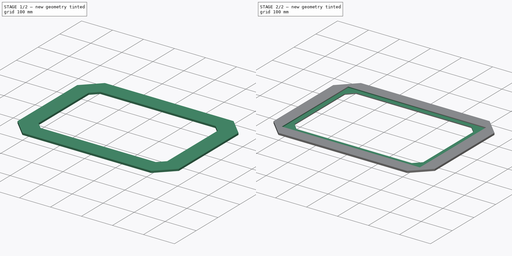
[diagram: build sequence overview — one tinted view per stage of 2, left to right]
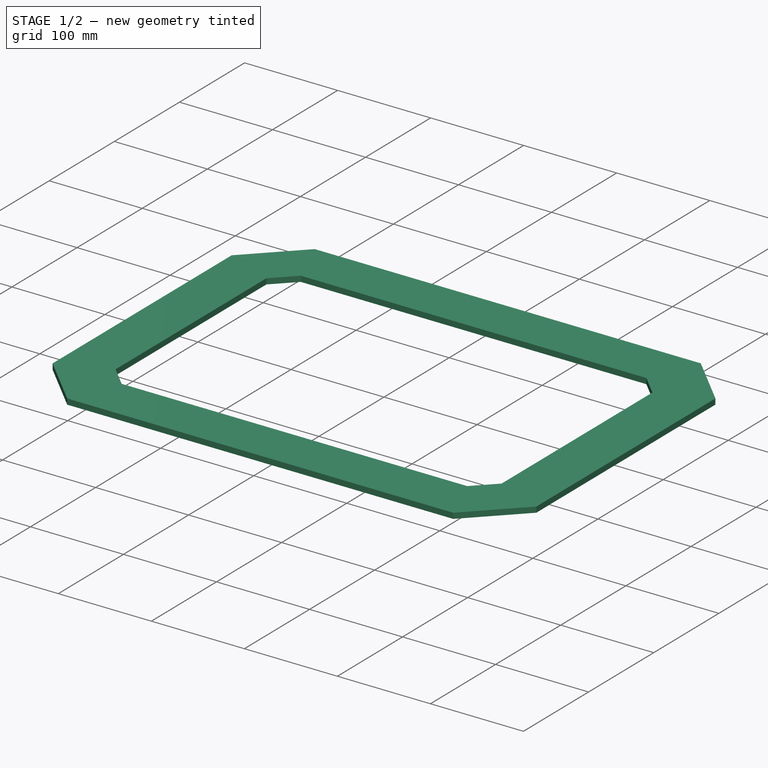
[diagram: stage 1 of 2 — iso view after this stage's code; geometry added in this stage tinted green]
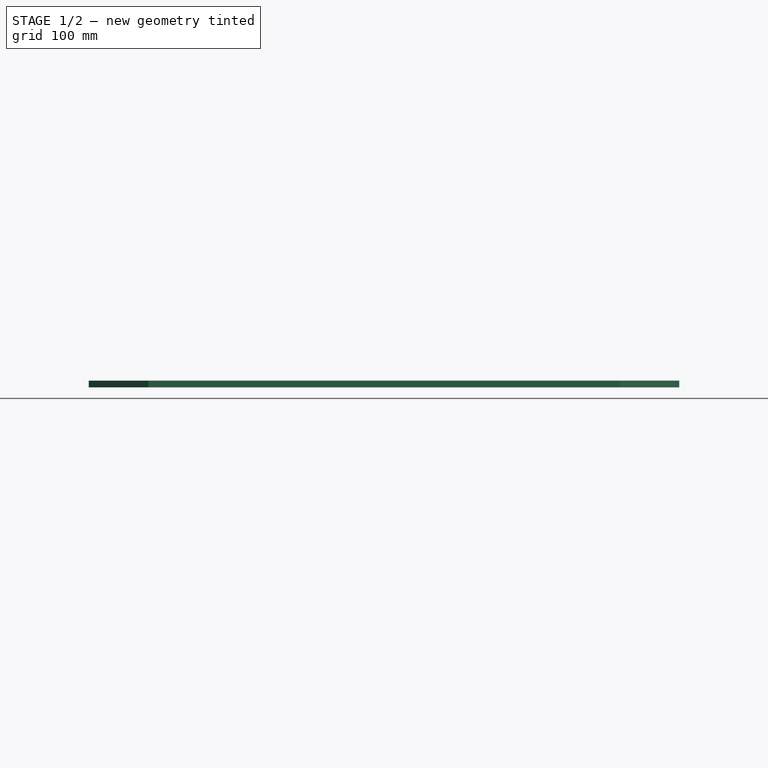
[diagram: stage 1 of 2 — front view after this stage's code; geometry added in this stage tinted green]
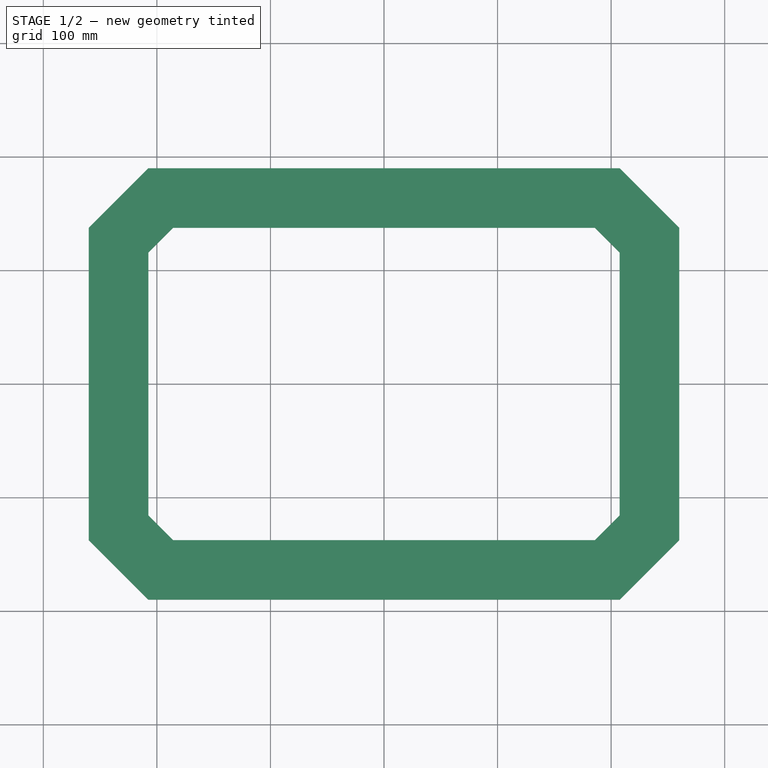
[diagram: stage 1 of 2 — top view after this stage's code; geometry added in this stage tinted green]
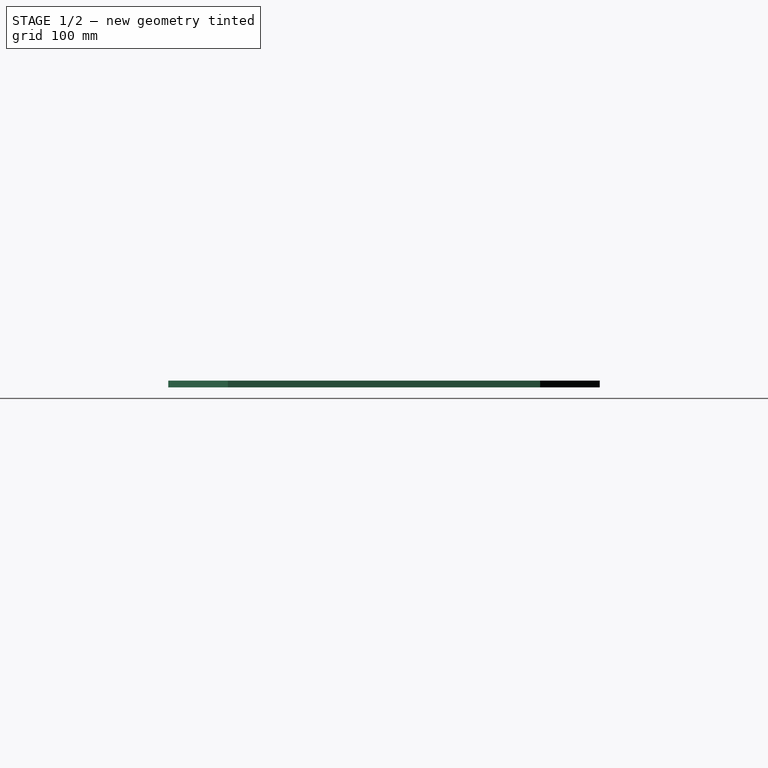
[diagram: stage 1 of 2 — right view after this stage's code; geometry added in this stage tinted green]
FCSTD DOCUMENT  (FreeCAD 0.20R29603 (Git))
Label: Aussenrahmen-Fenster_Doppelglas_440x300
License: All rights reserved
LicenseURL: http://en.wikipedia.org/wiki/All_rights_reserved
objects: Sketcher::SketchObject×2, PartDesign::Pad×1, PartDesign::Pocket×1, PartDesign::Body×1
note: 7 computed .brp shape members not serialized (recipe doc carries the construction recipe); baked Part::Feature solids carry a one-line shape summary decoded from their .brp

FEATURE [Sketcher::SketchObject] Sketch
  FullyConstrained = true
  MapMode = 5
  Support = -> [XY_Plane]
  sketch-geometry (16):
    g0: LineSegment StartX=-207.5 StartY=190 StartZ=0 EndX=207.5 EndY=190 EndZ=0
    g1: LineSegment StartX=207.5 StartY=190 StartZ=0 EndX=260 EndY=137.5 EndZ=0
    g2: LineSegment StartX=260 StartY=137.5 StartZ=0 EndX=260 EndY=-137.5 EndZ=0
    g3: LineSegment StartX=260 StartY=-137.5 StartZ=0 EndX=207.5 EndY=-190 EndZ=0
    g4: LineSegment StartX=207.5 StartY=-190 StartZ=0 EndX=-207.5 EndY=-190 EndZ=0
    g5: LineSegment StartX=-207.5 StartY=-190 StartZ=0 EndX=-260 EndY=-137.5 EndZ=0
    g6: LineSegment StartX=-260 StartY=-137.5 StartZ=0 EndX=-260 EndY=137.5 EndZ=0
    g7: LineSegment StartX=-260 StartY=137.5 StartZ=0 EndX=-207.5 EndY=190 EndZ=0
    g8: LineSegment StartX=-207.5 StartY=-115.754 StartZ=0 EndX=-207.5 EndY=115.754 EndZ=0
    g9: LineSegment StartX=-207.5 StartY=115.754 StartZ=0 EndX=-185.754 EndY=137.5 EndZ=0
    g10: LineSegment StartX=-185.754 StartY=137.5 StartZ=0 EndX=185.754 EndY=137.5 EndZ=0
    g11: LineSegment StartX=185.754 StartY=137.5 StartZ=0 EndX=207.5 EndY=115.754 EndZ=0
    g12: LineSegment StartX=207.5 StartY=115.754 StartZ=0 EndX=207.5 EndY=-115.754 EndZ=0
    g13: LineSegment StartX=207.5 StartY=-115.754 StartZ=0 EndX=185.754 EndY=-137.5 EndZ=0
    g14: LineSegment StartX=185.754 StartY=-137.5 StartZ=0 EndX=-185.754 EndY=-137.5 EndZ=0
    g15: LineSegment StartX=-185.754 StartY=-137.5 StartZ=0 EndX=-207.5 EndY=-115.754 EndZ=0
  constraints (44):
    c: Horizontal(g0)
    c: Coincident(g0,g1)
    c: Coincident(g1,g2)
    c: Vertical(g2)
    c: Coincident(g2,g3)
    c: Coincident(g3,g4)
    c: Horizontal(g4)
    c: Coincident(g4,g5)
    c: Coincident(g5,g6)
    c: Vertical(g6)
    c: Coincident(g6,g7)
    c: Coincident(g7,g0)
    c: Symmetric(g5,g2,g-2)
    c: Equal(g5,g7)
    c: Equal(g7,g1)
    c: Equal(g1,g3)
    c: Angle(g1,g2) = 2.35619
    c: Equal(g0,g4)
    c: Symmetric(g0,g3,g-1)
    c: Distance(g0,g3) = 380
    c: Distance(g6,g2) = 520
    c: Distance(g0,g6) = 52.5
    c: Vertical(g8)
    c: Coincident(g8,g9)
    c: Coincident(g9,g10)
    c: Horizontal(g10)
    c: Coincident(g10,g11)
    c: Coincident(g11,g12)
    c: Vertical(g12)
    c: Coincident(g12,g13)
    c: Coincident(g13,g14)
    c: Horizontal(g14)
    c: Coincident(g14,g15)
    c: Coincident(g15,g8)
    c: Distance(g8,g6) = 52.5
    c: Distance(g14,g4) = 52.5
    c: Symmetric(g8,g12,g-2)
    c: Symmetric(g9,g14,g-1)
    c: Equal(g9,g11)
    c: Equal(g11,g13)
    c: Equal(g13,g15)
    c: Parallel(g11,g1)
    c: Parallel(g9,g7)
    c: Distance(g9,g7) = 52.5
FEATURE [PartDesign::Pad] Pad
  Direction = (0,0,1)
  Length = 6
  Length2 = 10
  Profile = -> Sketch
  ReferenceAxis = -> Sketch [N_Axis]
  Type = 0
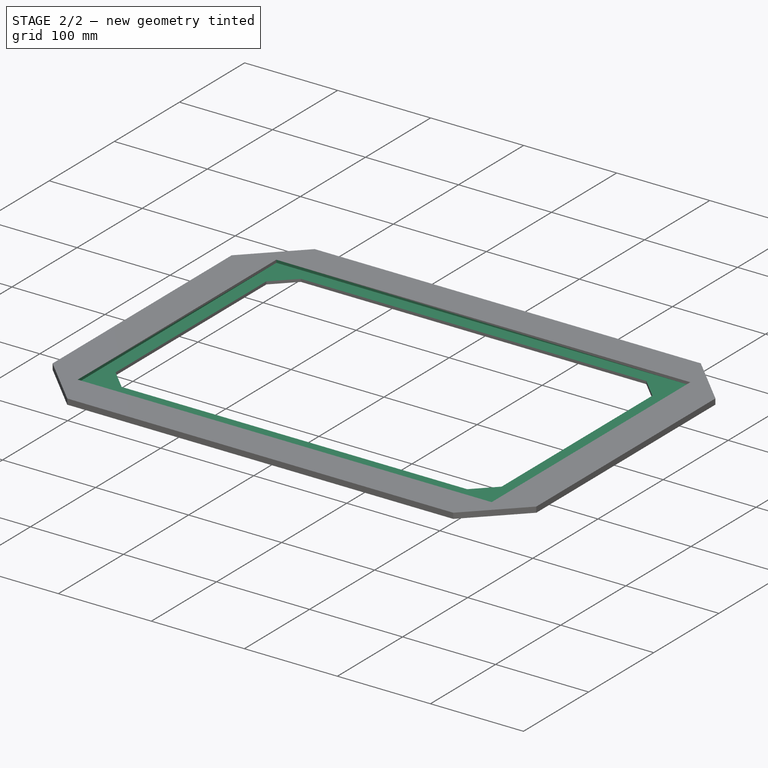
[diagram: stage 2 of 2 — iso view after this stage's code; geometry added in this stage tinted green]
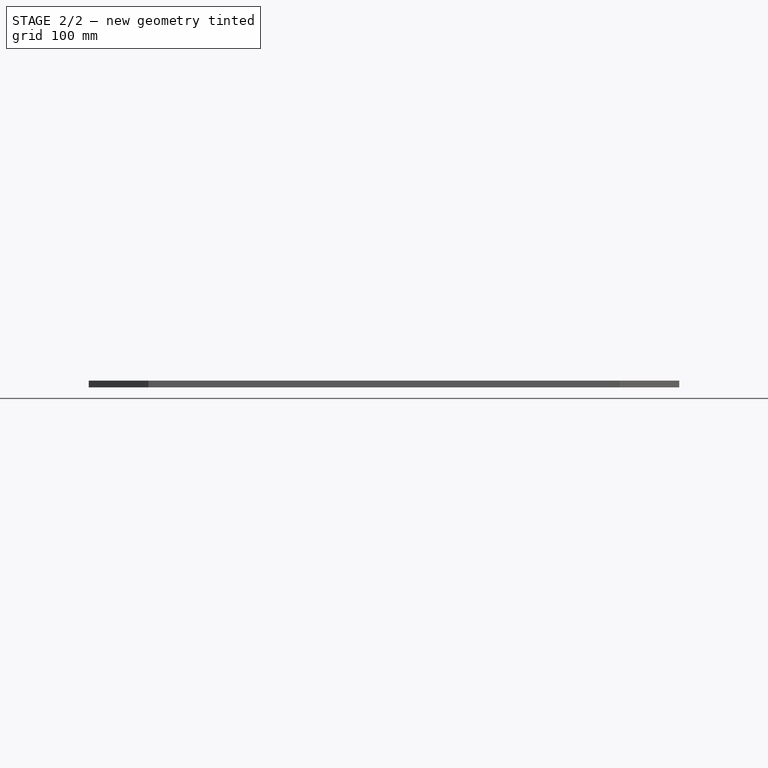
[diagram: stage 2 of 2 — front view after this stage's code; geometry added in this stage tinted green]
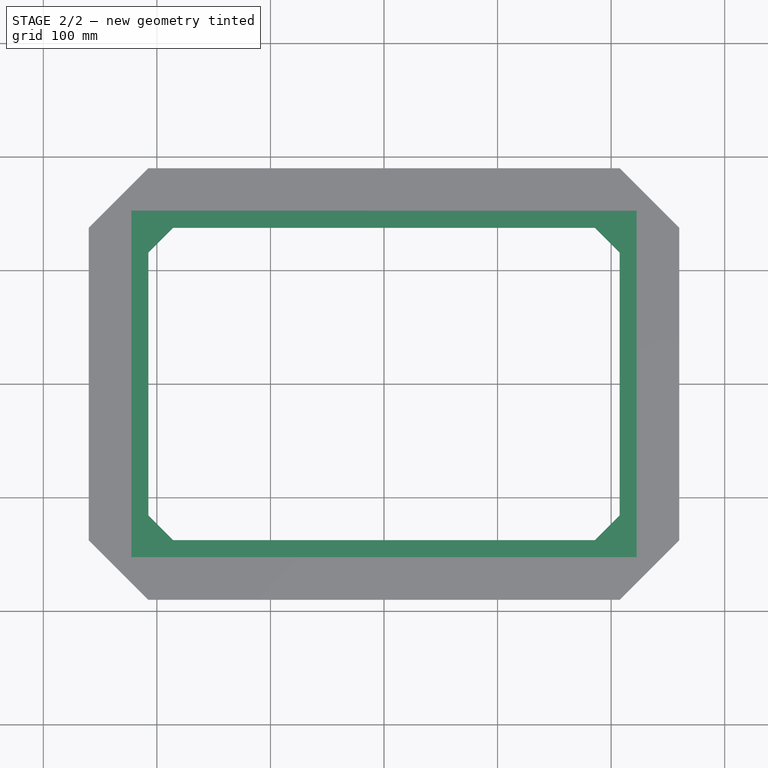
[diagram: stage 2 of 2 — top view after this stage's code; geometry added in this stage tinted green]
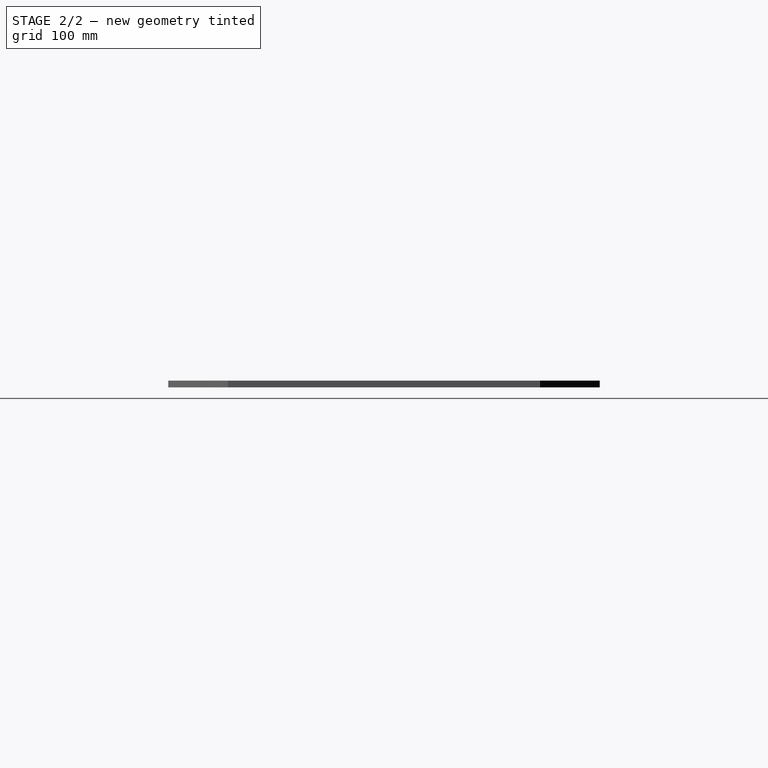
[diagram: stage 2 of 2 — right view after this stage's code; geometry added in this stage tinted green]
FEATURE [Sketcher::SketchObject] Sketch001
  FullyConstrained = true
  MapMode = 5
  Placement = pos=(0,0,6) rot=(0,0,1;0rad)
  Support = -> [Pad]
  sketch-geometry (5):
    g0: LineSegment StartX=-222.5 StartY=152.5 StartZ=0 EndX=-222.5 EndY=-152.5 EndZ=0
    g1: LineSegment StartX=-222.5 StartY=-152.5 StartZ=0 EndX=222.5 EndY=-152.5 EndZ=0
    g2: LineSegment StartX=222.5 StartY=-152.5 StartZ=0 EndX=222.5 EndY=152.5 EndZ=0
    g3: LineSegment StartX=222.5 StartY=152.5 StartZ=0 EndX=-222.5 EndY=152.5 EndZ=0
    g4: GeomPoint X=0 Y=0 Z=0
  constraints (12):
    c: Coincident(g0,g1)
    c: Coincident(g1,g2)
    c: Coincident(g2,g3)
    c: Coincident(g3,g0)
    c: Horizontal(g1)
    c: Horizontal(g3)
    c: Vertical(g0)
    c: Vertical(g2)
    c: Symmetric(g1,g0,g4)
    c: Coincident(g4,g-1)
    c: Distance(g3) = 445
    c: Distance(g2) = 305
FEATURE [PartDesign::Pocket] Pocket
  BaseFeature = -> Pad
  Direction = (0,0,-1)
  Length = 3
  Length2 = 5
  Profile = -> Sketch001
  ReferenceAxis = -> Sketch001 [N_Axis]
  Type = 0
FEATURE [PartDesign::Body] Body
  Group = -> [Sketch,Pad,Sketch001,Pocket]
  Origin = -> Origin
  Tip = -> Pocket
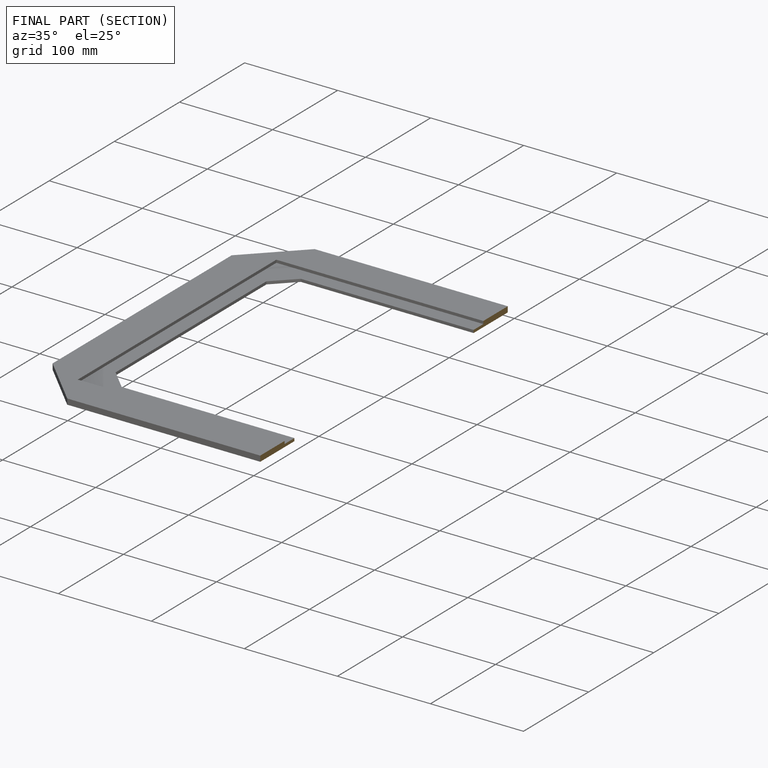
[diagram: finished part — half-section view (interior)]
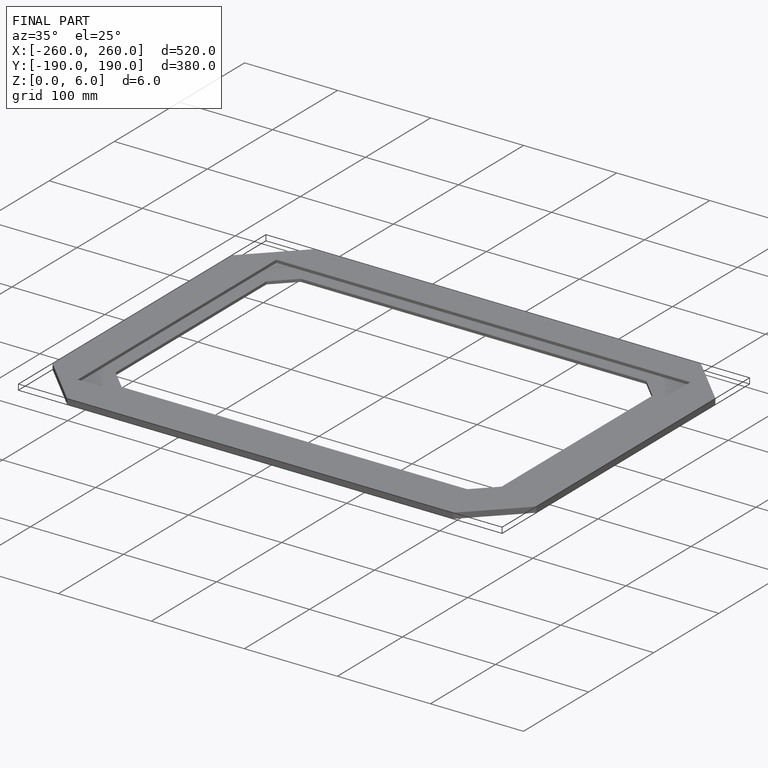
[diagram: finished part — iso view with bounding-box wireframe]
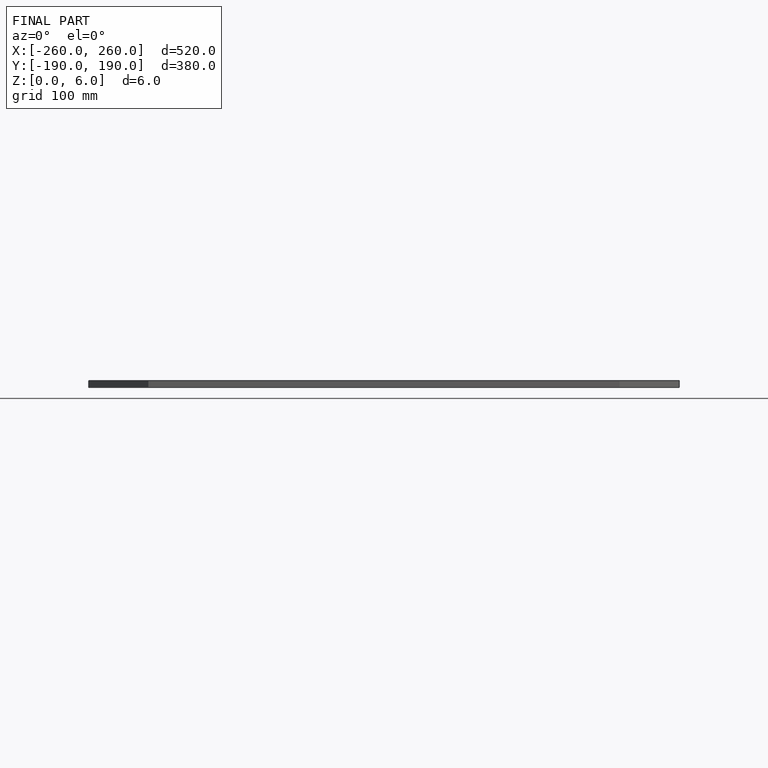
[diagram: finished part — front view with bounding-box wireframe]
